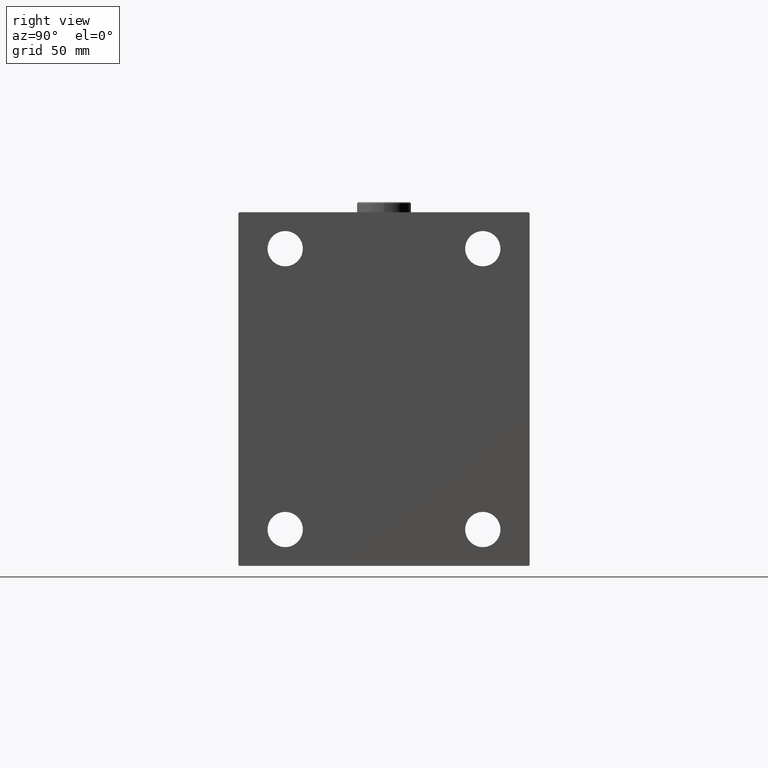
[diagram: clean part render]
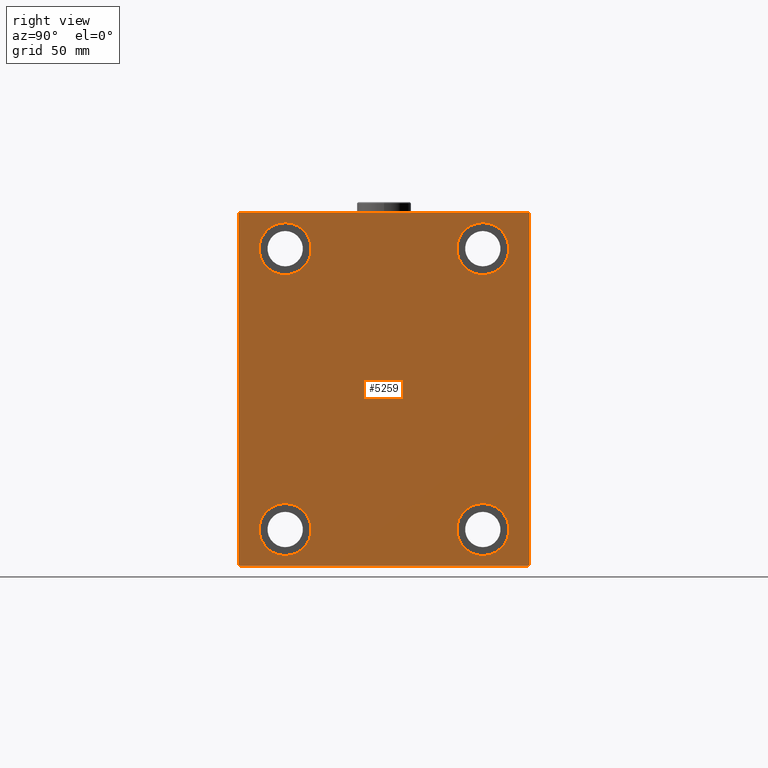
[diagram: same view with one face highlighted and labeled with its STEP entity id]
A machine part, right view. The second image highlights one B-rep face of the part: STEP entity #5259.
In plain terms, the highlighted planar face has unit normal (1, 0, 0).
Its self-contained STEP definition (entity closure, byte-faithful):
#65 = VERTEX_POINT ( 'NONE', #5358 ) ;
#303 = ORIENTED_EDGE ( 'NONE', *, *, #8678, .T. ) ;
#644 = CIRCLE ( 'NONE', #6836, 12.50000000000001066 ) ;
#723 = VERTEX_POINT ( 'NONE', #19451 ) ;
#1194 = DIRECTION ( 'NONE',  ( 0.000000000000000000, 0.000000000000000000, 1.000000000000000000 ) ) ;
#1615 = CARTESIAN_POINT ( 'NONE',  ( 135.0000000000000000, -47.49999999999997868, 80.00000000000001421 ) ) ;
#1733 = DIRECTION ( 'NONE',  ( -0.000000000000000000, -0.7071067811865574537, 0.7071067811865376918 ) ) ;
#1916 = VERTEX_POINT ( 'NONE', #6475 ) ;
#2178 = CARTESIAN_POINT ( 'NONE',  ( 135.0000000000000000, 47.50000000000000711, -67.50000000000000000 ) ) ;
#2552 = EDGE_CURVE ( 'NONE', #31079, #5165, #8741, .T. ) ;
#2741 = EDGE_LOOP ( 'NONE', ( #303, #4851 ) ) ;
#3135 = CARTESIAN_POINT ( 'NONE',  ( 135.0000000000000000, -69.49999999999998579, -85.00000000000002842 ) ) ;
#3214 = LINE ( 'NONE', #13915, #46110 ) ;
#3485 = AXIS2_PLACEMENT_3D ( 'NONE', #10482, #24339, #39157 ) ;
#3663 = EDGE_CURVE ( 'NONE', #1916, #37190, #25489, .T. ) ;
#3924 = DIRECTION ( 'NONE',  ( 0.000000000000000000, 0.000000000000000000, 1.000000000000000000 ) ) ;
#3958 = CARTESIAN_POINT ( 'NONE',  ( 135.0000000000000000, 77.25000000000100897, -77.24999999999886313 ) ) ;
#4851 = ORIENTED_EDGE ( 'NONE', *, *, #22024, .T. ) ;
#5165 = VERTEX_POINT ( 'NONE', #23943 ) ;
#5259 = ADVANCED_FACE ( 'NONE', ( #29031, #28308, #43368, #32442, #43605 ), #21514, .T. ) ;
#5358 = CARTESIAN_POINT ( 'NONE',  ( 135.0000000000000000, -47.49999999999999289, -80.00000000000000000 ) ) ;
#5376 = CARTESIAN_POINT ( 'NONE',  ( 135.0000000000000000, 77.24999999999907629, 77.25000000000122213 ) ) ;
#5789 = CARTESIAN_POINT ( 'NONE',  ( 135.0000000000000000, 70.00000000000001421, 85.00000000000000000 ) ) ;
#6475 = CARTESIAN_POINT ( 'NONE',  ( 135.0000000000000000, -69.99999999999998579, 84.50000000000001421 ) ) ;
#6625 = EDGE_CURVE ( 'NONE', #5165, #31079, #20525, .T. ) ;
#6691 = EDGE_CURVE ( 'NONE', #723, #8138, #16256, .T. ) ;
#6782 = DIRECTION ( 'NONE',  ( 0.000000000000000000, 0.000000000000000000, 1.000000000000000000 ) ) ;
#6836 = AXIS2_PLACEMENT_3D ( 'NONE', #15833, #30175, #3924 ) ;
#6887 = LINE ( 'NONE', #3958, #34271 ) ;
#7618 = EDGE_CURVE ( 'NONE', #27852, #723, #27247, .T. ) ;
#8138 = VERTEX_POINT ( 'NONE', #43882 ) ;
#8678 = EDGE_CURVE ( 'NONE', #65, #47420, #33771, .T. ) ;
#8741 = CIRCLE ( 'NONE', #14976, 12.50000000000001066 ) ;
#8742 = DIRECTION ( 'NONE',  ( 0.000000000000000000, -0.7071067811865474617, -0.7071067811865474617 ) ) ;
#8868 = ORIENTED_EDGE ( 'NONE', *, *, #11947, .T. ) ;
#9074 = VERTEX_POINT ( 'NONE', #3135 ) ;
#9334 = VERTEX_POINT ( 'NONE', #25431 ) ;
#9459 = EDGE_CURVE ( 'NONE', #24021, #27852, #16408, .T. ) ;
#9584 = CARTESIAN_POINT ( 'NONE',  ( 135.0000000000000000, 70.00000000000002842, -85.00000000000001421 ) ) ;
#10482 = CARTESIAN_POINT ( 'NONE',  ( 135.0000000000000000, -47.49999999999999289, -67.50000000000000000 ) ) ;
#10489 = VECTOR ( 'NONE', #42695, 1000.000000000000000 ) ;
#10767 = EDGE_LOOP ( 'NONE', ( #26771, #29987, #43272, #8868, #40810, #30191, #28295, #37179 ) ) ;
#10946 = EDGE_LOOP ( 'NONE', ( #46647, #14366 ) ) ;
#11179 = AXIS2_PLACEMENT_3D ( 'NONE', #16493, #46363, #1194 ) ;
#11680 = CARTESIAN_POINT ( 'NONE',  ( 135.0000000000000000, -77.25000000000001421, 77.25000000000001421 ) ) ;
#11733 = EDGE_CURVE ( 'NONE', #9334, #28164, #36089, .T. ) ;
#11947 = EDGE_CURVE ( 'NONE', #37190, #9074, #27403, .T. ) ;
#13313 = CARTESIAN_POINT ( 'NONE',  ( 135.0000000000000000, 69.50000000000007105, -85.00000000000001421 ) ) ;
#13915 = CARTESIAN_POINT ( 'NONE',  ( 135.0000000000000000, -69.99999999999998579, -85.00000000000002842 ) ) ;
#14366 = ORIENTED_EDGE ( 'NONE', *, *, #22441, .T. ) ;
#14823 = VERTEX_POINT ( 'NONE', #30372 ) ;
#14976 = AXIS2_PLACEMENT_3D ( 'NONE', #47178, #46929, #43297 ) ;
#15002 = VERTEX_POINT ( 'NONE', #43701 ) ;
#15833 = CARTESIAN_POINT ( 'NONE',  ( 135.0000000000000000, 47.50000000000000711, 67.50000000000000000 ) ) ;
#16256 = LINE ( 'NONE', #5789, #38336 ) ;
#16408 = LINE ( 'NONE', #9584, #21291 ) ;
#16493 = CARTESIAN_POINT ( 'NONE',  ( 135.0000000000000000, -47.49999999999997868, 67.50000000000000000 ) ) ;
#17010 = DIRECTION ( 'NONE',  ( -1.000000000000000000, -0.000000000000000000, -0.000000000000000000 ) ) ;
#17114 = CARTESIAN_POINT ( 'NONE',  ( 135.0000000000000000, 47.50000000000000711, 67.50000000000000000 ) ) ;
#17560 = DIRECTION ( 'NONE',  ( -1.000000000000000000, -0.000000000000000000, -0.000000000000000000 ) ) ;
#17714 = CIRCLE ( 'NONE', #20801, 12.49999999999999645 ) ;
#17735 = DIRECTION ( 'NONE',  ( 0.000000000000000000, 0.000000000000000000, -1.000000000000000000 ) ) ;
#18046 = DIRECTION ( 'NONE',  ( 0.000000000000000000, 1.000000000000000000, 9.912705577010325549E-17 ) ) ;
#18397 = AXIS2_PLACEMENT_3D ( 'NONE', #2178, #17010, #6782 ) ;
#19247 = CARTESIAN_POINT ( 'NONE',  ( 135.0000000000000000, -77.24999999999907629, -77.25000000000120792 ) ) ;
#19451 = CARTESIAN_POINT ( 'NONE',  ( 135.0000000000000000, 69.50000000000007105, 85.00000000000000000 ) ) ;
#19657 = EDGE_LOOP ( 'NONE', ( #44051, #29151 ) ) ;
#19965 = CIRCLE ( 'NONE', #18397, 12.49999999999999645 ) ;
#20410 = EDGE_CURVE ( 'NONE', #28164, #9334, #19965, .T. ) ;
#20525 = CIRCLE ( 'NONE', #11179, 12.50000000000001066 ) ;
#20801 = AXIS2_PLACEMENT_3D ( 'NONE', #44811, #30700, #23409 ) ;
#21291 = VECTOR ( 'NONE', #35588, 1000.000000000000000 ) ;
#21514 = PLANE ( 'NONE',  #32102 ) ;
#22024 = EDGE_CURVE ( 'NONE', #47420, #65, #17714, .T. ) ;
#22114 = AXIS2_PLACEMENT_3D ( 'NONE', #35531, #17560, #43065 ) ;
#22247 = CARTESIAN_POINT ( 'NONE',  ( 135.0000000000000000, 70.00000000000002842, -84.50000000000004263 ) ) ;
#22441 = EDGE_CURVE ( 'NONE', #15002, #14823, #644, .T. ) ;
#23409 = DIRECTION ( 'NONE',  ( 0.000000000000000000, 0.000000000000000000, 1.000000000000000000 ) ) ;
#23428 = CARTESIAN_POINT ( 'NONE',  ( 135.0000000000000000, -47.49999999999999289, -55.00000000000000711 ) ) ;
#23943 = CARTESIAN_POINT ( 'NONE',  ( 135.0000000000000000, -47.49999999999997868, 55.00000000000000000 ) ) ;
#24021 = VERTEX_POINT ( 'NONE', #22247 ) ;
#24171 = AXIS2_PLACEMENT_3D ( 'NONE', #17114, #31927, #35813 ) ;
#24339 = DIRECTION ( 'NONE',  ( -1.000000000000000000, -0.000000000000000000, -0.000000000000000000 ) ) ;
#24425 = DIRECTION ( 'NONE',  ( 0.000000000000000000, 0.000000000000000000, -1.000000000000000000 ) ) ;
#25431 = CARTESIAN_POINT ( 'NONE',  ( 135.0000000000000000, 47.50000000000000711, -80.00000000000000000 ) ) ;
#25489 = LINE ( 'NONE', #42992, #42874 ) ;
#26219 = EDGE_LOOP ( 'NONE', ( #42826, #39396 ) ) ;
#26759 = VECTOR ( 'NONE', #1733, 999.9999999999998863 ) ;
#26771 = ORIENTED_EDGE ( 'NONE', *, *, #6691, .T. ) ;
#27247 = LINE ( 'NONE', #5376, #26759 ) ;
#27403 = LINE ( 'NONE', #19247, #10489 ) ;
#27852 = VERTEX_POINT ( 'NONE', #36009 ) ;
#28164 = VERTEX_POINT ( 'NONE', #33026 ) ;
#28295 = ORIENTED_EDGE ( 'NONE', *, *, #9459, .T. ) ;
#28308 = FACE_BOUND ( 'NONE', #26219, .T. ) ;
#28786 = DIRECTION ( 'NONE',  ( 1.000000000000000000, 0.000000000000000000, 0.000000000000000000 ) ) ;
#29031 = FACE_BOUND ( 'NONE', #19657, .T. ) ;
#29117 = EDGE_CURVE ( 'NONE', #8138, #1916, #30868, .T. ) ;
#29151 = ORIENTED_EDGE ( 'NONE', *, *, #20410, .T. ) ;
#29987 = ORIENTED_EDGE ( 'NONE', *, *, #29117, .T. ) ;
#30175 = DIRECTION ( 'NONE',  ( -1.000000000000000000, -0.000000000000000000, -0.000000000000000000 ) ) ;
#30191 = ORIENTED_EDGE ( 'NONE', *, *, #31526, .T. ) ;
#30372 = CARTESIAN_POINT ( 'NONE',  ( 135.0000000000000000, 47.50000000000000711, 55.00000000000000000 ) ) ;
#30700 = DIRECTION ( 'NONE',  ( -1.000000000000000000, -0.000000000000000000, -0.000000000000000000 ) ) ;
#30868 = LINE ( 'NONE', #11680, #45068 ) ;
#31006 = CARTESIAN_POINT ( 'NONE',  ( 135.0000000000000000, -69.99999999999998579, -84.50000000000004263 ) ) ;
#31079 = VERTEX_POINT ( 'NONE', #1615 ) ;
#31466 = EDGE_CURVE ( 'NONE', #14823, #15002, #45140, .T. ) ;
#31526 = EDGE_CURVE ( 'NONE', #34882, #24021, #6887, .T. ) ;
#31927 = DIRECTION ( 'NONE',  ( -1.000000000000000000, -0.000000000000000000, -0.000000000000000000 ) ) ;
#32102 = AXIS2_PLACEMENT_3D ( 'NONE', #36328, #28786, #24425 ) ;
#32442 = FACE_BOUND ( 'NONE', #2741, .T. ) ;
#33026 = CARTESIAN_POINT ( 'NONE',  ( 135.0000000000000000, 47.50000000000000711, -55.00000000000000711 ) ) ;
#33771 = CIRCLE ( 'NONE', #3485, 12.49999999999999645 ) ;
#34271 = VECTOR ( 'NONE', #41115, 999.9999999999998863 ) ;
#34882 = VERTEX_POINT ( 'NONE', #13313 ) ;
#35531 = CARTESIAN_POINT ( 'NONE',  ( 135.0000000000000000, 47.50000000000000711, -67.50000000000000000 ) ) ;
#35588 = DIRECTION ( 'NONE',  ( 0.000000000000000000, -8.163404592832031500E-17, 1.000000000000000000 ) ) ;
#35813 = DIRECTION ( 'NONE',  ( 0.000000000000000000, 0.000000000000000000, 1.000000000000000000 ) ) ;
#36009 = CARTESIAN_POINT ( 'NONE',  ( 135.0000000000000000, 70.00000000000001421, 84.50000000000007105 ) ) ;
#36089 = CIRCLE ( 'NONE', #22114, 12.49999999999999645 ) ;
#36328 = CARTESIAN_POINT ( 'NONE',  ( 135.0000000000000000, 0.000000000000000000, 0.000000000000000000 ) ) ;
#37179 = ORIENTED_EDGE ( 'NONE', *, *, #7618, .T. ) ;
#37190 = VERTEX_POINT ( 'NONE', #31006 ) ;
#38336 = VECTOR ( 'NONE', #45879, 1000.000000000000000 ) ;
#39157 = DIRECTION ( 'NONE',  ( 0.000000000000000000, 0.000000000000000000, 1.000000000000000000 ) ) ;
#39396 = ORIENTED_EDGE ( 'NONE', *, *, #2552, .T. ) ;
#40810 = ORIENTED_EDGE ( 'NONE', *, *, #42998, .T. ) ;
#41115 = DIRECTION ( 'NONE',  ( -0.000000000000000000, 0.7071067811865376918, 0.7071067811865574537 ) ) ;
#42695 = DIRECTION ( 'NONE',  ( -0.000000000000000000, 0.7071067811865573427, -0.7071067811865378028 ) ) ;
#42826 = ORIENTED_EDGE ( 'NONE', *, *, #6625, .T. ) ;
#42874 = VECTOR ( 'NONE', #17735, 1000.000000000000000 ) ;
#42992 = CARTESIAN_POINT ( 'NONE',  ( 135.0000000000000000, -69.99999999999998579, 84.99999999999998579 ) ) ;
#42998 = EDGE_CURVE ( 'NONE', #9074, #34882, #3214, .T. ) ;
#43065 = DIRECTION ( 'NONE',  ( 0.000000000000000000, 0.000000000000000000, 1.000000000000000000 ) ) ;
#43272 = ORIENTED_EDGE ( 'NONE', *, *, #3663, .T. ) ;
#43297 = DIRECTION ( 'NONE',  ( 0.000000000000000000, 0.000000000000000000, 1.000000000000000000 ) ) ;
#43368 = FACE_BOUND ( 'NONE', #10946, .T. ) ;
#43605 = FACE_OUTER_BOUND ( 'NONE', #10767, .T. ) ;
#43701 = CARTESIAN_POINT ( 'NONE',  ( 135.0000000000000000, 47.50000000000000711, 80.00000000000001421 ) ) ;
#43882 = CARTESIAN_POINT ( 'NONE',  ( 135.0000000000000000, -69.50000000000001421, 84.99999999999998579 ) ) ;
#44051 = ORIENTED_EDGE ( 'NONE', *, *, #11733, .T. ) ;
#44811 = CARTESIAN_POINT ( 'NONE',  ( 135.0000000000000000, -47.49999999999999289, -67.50000000000000000 ) ) ;
#45068 = VECTOR ( 'NONE', #8742, 1000.000000000000114 ) ;
#45140 = CIRCLE ( 'NONE', #24171, 12.50000000000001066 ) ;
#45879 = DIRECTION ( 'NONE',  ( 0.000000000000000000, -1.000000000000000000, -9.912705577010325549E-17 ) ) ;
#46110 = VECTOR ( 'NONE', #18046, 1000.000000000000000 ) ;
#46363 = DIRECTION ( 'NONE',  ( -1.000000000000000000, -0.000000000000000000, -0.000000000000000000 ) ) ;
#46647 = ORIENTED_EDGE ( 'NONE', *, *, #31466, .T. ) ;
#46929 = DIRECTION ( 'NONE',  ( -1.000000000000000000, -0.000000000000000000, -0.000000000000000000 ) ) ;
#47178 = CARTESIAN_POINT ( 'NONE',  ( 135.0000000000000000, -47.49999999999997868, 67.50000000000000000 ) ) ;
#47420 = VERTEX_POINT ( 'NONE', #23428 ) ;